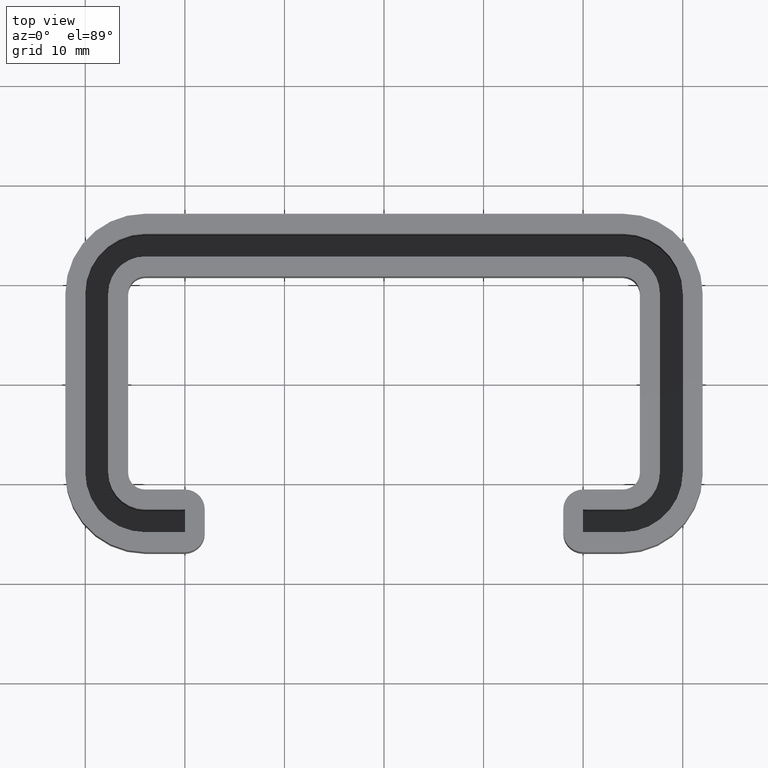
[diagram: clean part render]
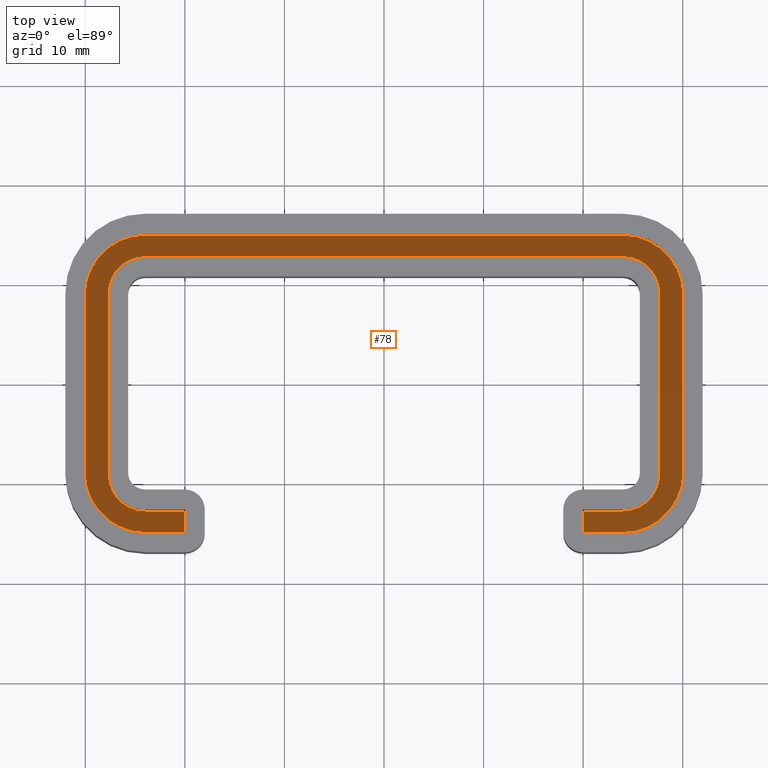
[diagram: same view with one face highlighted and labeled with its STEP entity id]
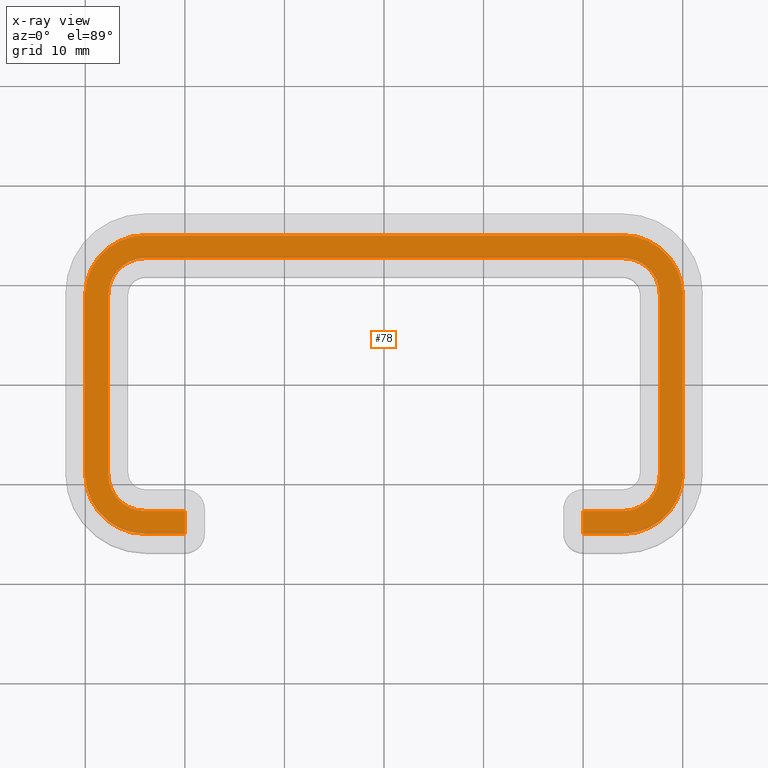
[diagram: x-ray of the same camera — body ghosted, the highlighted face saturated]
A machine part, top view. The second image highlights one B-rep face of the part: STEP entity #78.
The next image is the same camera in x-ray: the body ghosted, the highlighted face saturated — about 4% of this face is hidden behind the body in this view.
In plain terms, the highlighted planar face has unit normal (0, 0, 1).
Its self-contained STEP definition (entity closure, byte-faithful):
#78 = ADVANCED_FACE( '', ( #154 ), #155, .T. );
#154 = FACE_OUTER_BOUND( '', #297, .T. );
#155 = PLANE( '', #298 );
#297 = EDGE_LOOP( '', ( #494, #495, #496, #497, #498, #499, #500, #501, #502, #503, #504, #505, #506, #507, #508, #509, #510, #511, #512, #513 ) );
#298 = AXIS2_PLACEMENT_3D( '', #514, #515, #516 );
#494 = ORIENTED_EDGE( '', *, *, #1048, .F. );
#495 = ORIENTED_EDGE( '', *, *, #1049, .F. );
#496 = ORIENTED_EDGE( '', *, *, #1050, .T. );
#497 = ORIENTED_EDGE( '', *, *, #1051, .F. );
#498 = ORIENTED_EDGE( '', *, *, #1052, .T. );
#499 = ORIENTED_EDGE( '', *, *, #1053, .F. );
#500 = ORIENTED_EDGE( '', *, *, #1046, .T. );
#501 = ORIENTED_EDGE( '', *, *, #1054, .F. );
#502 = ORIENTED_EDGE( '', *, *, #1055, .T. );
#503 = ORIENTED_EDGE( '', *, *, #1056, .F. );
#504 = ORIENTED_EDGE( '', *, *, #1057, .F. );
#505 = ORIENTED_EDGE( '', *, *, #1058, .F. );
#506 = ORIENTED_EDGE( '', *, *, #1059, .T. );
#507 = ORIENTED_EDGE( '', *, *, #1060, .F. );
#508 = ORIENTED_EDGE( '', *, *, #1061, .T. );
#509 = ORIENTED_EDGE( '', *, *, #1062, .F. );
#510 = ORIENTED_EDGE( '', *, *, #1063, .T. );
#511 = ORIENTED_EDGE( '', *, *, #1064, .F. );
#512 = ORIENTED_EDGE( '', *, *, #1065, .T. );
#513 = ORIENTED_EDGE( '', *, *, #1066, .F. );
#514 = CARTESIAN_POINT( '', ( -4.44089209850063E-015, 0.000000000000000, -10.0000000000000 ) );
#515 = DIRECTION( '', ( 0.000000000000000, 0.000000000000000, 1.00000000000000 ) );
#516 = DIRECTION( '', ( 1.00000000000000, 0.000000000000000, 0.000000000000000 ) );
#1046 = EDGE_CURVE( '', #1269, #1267, #1270, .T. );
#1048 = EDGE_CURVE( '', #1272, #1273, #1274, .T. );
#1049 = EDGE_CURVE( '', #1275, #1272, #1276, .T. );
#1050 = EDGE_CURVE( '', #1275, #1277, #1278, .T. );
#1051 = EDGE_CURVE( '', #1279, #1277, #1280, .T. );
#1052 = EDGE_CURVE( '', #1279, #1281, #1282, .T. );
#1053 = EDGE_CURVE( '', #1269, #1281, #1283, .T. );
#1054 = EDGE_CURVE( '', #1284, #1267, #1285, .T. );
#1055 = EDGE_CURVE( '', #1284, #1286, #1287, .T. );
#1056 = EDGE_CURVE( '', #1288, #1286, #1289, .T. );
#1057 = EDGE_CURVE( '', #1290, #1288, #1291, .T. );
#1058 = EDGE_CURVE( '', #1292, #1290, #1293, .T. );
#1059 = EDGE_CURVE( '', #1292, #1294, #1295, .T. );
#1060 = EDGE_CURVE( '', #1296, #1294, #1297, .T. );
#1061 = EDGE_CURVE( '', #1296, #1298, #1299, .T. );
#1062 = EDGE_CURVE( '', #1300, #1298, #1301, .T. );
#1063 = EDGE_CURVE( '', #1300, #1302, #1303, .T. );
#1064 = EDGE_CURVE( '', #1304, #1302, #1305, .T. );
#1065 = EDGE_CURVE( '', #1304, #1306, #1307, .T. );
#1066 = EDGE_CURVE( '', #1273, #1306, #1308, .T. );
#1267 = VERTEX_POINT( '', #1578 );
#1269 = VERTEX_POINT( '', #1581 );
#1270 = CIRCLE( '', #1582, 3.70000000000000 );
#1272 = VERTEX_POINT( '', #1585 );
#1273 = VERTEX_POINT( '', #1586 );
#1274 = LINE( '', #1587, #1588 );
#1275 = VERTEX_POINT( '', #1589 );
#1276 = LINE( '', #1590, #1591 );
#1277 = VERTEX_POINT( '', #1592 );
#1278 = CIRCLE( '', #1593, 3.70000000000000 );
#1279 = VERTEX_POINT( '', #1594 );
#1280 = LINE( '', #1595, #1596 );
#1281 = VERTEX_POINT( '', #1597 );
#1282 = CIRCLE( '', #1598, 3.70000000000000 );
#1283 = LINE( '', #1599, #1600 );
#1284 = VERTEX_POINT( '', #1601 );
#1285 = LINE( '', #1602, #1603 );
#1286 = VERTEX_POINT( '', #1604 );
#1287 = CIRCLE( '', #1605, 3.70000000000000 );
#1288 = VERTEX_POINT( '', #1606 );
#1289 = LINE( '', #1607, #1608 );
#1290 = VERTEX_POINT( '', #1609 );
#1291 = LINE( '', #1610, #1611 );
#1292 = VERTEX_POINT( '', #1612 );
#1293 = LINE( '', #1613, #1614 );
#1294 = VERTEX_POINT( '', #1615 );
#1295 = CIRCLE( '', #1616, 6.00000000000000 );
#1296 = VERTEX_POINT( '', #1617 );
#1297 = LINE( '', #1618, #1619 );
#1298 = VERTEX_POINT( '', #1620 );
#1299 = CIRCLE( '', #1621, 6.00000000000000 );
#1300 = VERTEX_POINT( '', #1622 );
#1301 = LINE( '', #1623, #1624 );
#1302 = VERTEX_POINT( '', #1625 );
#1303 = CIRCLE( '', #1626, 6.00000000000000 );
#1304 = VERTEX_POINT( '', #1627 );
#1305 = LINE( '', #1628, #1629 );
#1306 = VERTEX_POINT( '', #1630 );
#1307 = CIRCLE( '', #1631, 6.00000000000000 );
#1308 = LINE( '', #1632, #1633 );
#1578 = CARTESIAN_POINT( '', ( 27.6999999999983, 9.00000000000080, -10.0000000000000 ) );
#1581 = CARTESIAN_POINT( '', ( 23.9999999999983, 12.7000000000008, -10.0000000000000 ) );
#1582 = AXIS2_PLACEMENT_3D( '', #1934, #1935, #1936 );
#1585 = CARTESIAN_POINT( '', ( -20.0000000000000, -12.6999999999992, -10.0000000000000 ) );
#1586 = CARTESIAN_POINT( '', ( -20.0000000000000, -15.0000000000000, -10.0000000000000 ) );
#1587 = CARTESIAN_POINT( '', ( -20.0000000000000, -10.0000000000000, -10.0000000000000 ) );
#1588 = VECTOR( '', #1938, 1000.00000000000 );
#1589 = CARTESIAN_POINT( '', ( -24.0000000000017, -12.6999999999992, -10.0000000000000 ) );
#1590 = CARTESIAN_POINT( '', ( 13.8499999999992, -12.6999999999992, -10.0000000000000 ) );
#1591 = VECTOR( '', #1939, 1000.00000000000 );
#1592 = CARTESIAN_POINT( '', ( -27.7000000000017, -8.99999999999918, -10.0000000000000 ) );
#1593 = AXIS2_PLACEMENT_3D( '', #1940, #1941, #1942 );
#1594 = CARTESIAN_POINT( '', ( -27.7000000000017, 9.00000000000080, -10.0000000000000 ) );
#1595 = CARTESIAN_POINT( '', ( -27.7000000000017, -6.34999999999959, -10.0000000000000 ) );
#1596 = VECTOR( '', #1943, 1000.00000000000 );
#1597 = CARTESIAN_POINT( '', ( -24.0000000000017, 12.7000000000008, -10.0000000000000 ) );
#1598 = AXIS2_PLACEMENT_3D( '', #1944, #1945, #1946 );
#1599 = CARTESIAN_POINT( '', ( -13.8500000000008, 12.7000000000008, -10.0000000000000 ) );
#1600 = VECTOR( '', #1947, 1000.00000000000 );
#1601 = CARTESIAN_POINT( '', ( 27.6999999999983, -8.99999999999918, -10.0000000000000 ) );
#1602 = CARTESIAN_POINT( '', ( 27.6999999999983, 6.35000000000040, -10.0000000000000 ) );
#1603 = VECTOR( '', #1948, 1000.00000000000 );
#1604 = CARTESIAN_POINT( '', ( 23.9999999999983, -12.6999999999992, -10.0000000000000 ) );
#1605 = AXIS2_PLACEMENT_3D( '', #1949, #1950, #1951 );
#1606 = CARTESIAN_POINT( '', ( 20.0000000000000, -12.6999999999992, -10.0000000000000 ) );
#1607 = CARTESIAN_POINT( '', ( 13.8499999999992, -12.6999999999992, -10.0000000000000 ) );
#1608 = VECTOR( '', #1952, 1000.00000000000 );
#1609 = CARTESIAN_POINT( '', ( 20.0000000000000, -15.0000000000000, -10.0000000000000 ) );
#1610 = CARTESIAN_POINT( '', ( 20.0000000000000, -5.00000000000000, -10.0000000000000 ) );
#1611 = VECTOR( '', #1953, 1000.00000000000 );
#1612 = CARTESIAN_POINT( '', ( 24.0000000000000, -15.0000000000000, -10.0000000000000 ) );
#1613 = CARTESIAN_POINT( '', ( 30.0000000000000, -15.0000000000000, -10.0000000000000 ) );
#1614 = VECTOR( '', #1954, 1000.00000000000 );
#1615 = CARTESIAN_POINT( '', ( 30.0000000000000, -9.00000000000000, -10.0000000000000 ) );
#1616 = AXIS2_PLACEMENT_3D( '', #1955, #1956, #1957 );
#1617 = CARTESIAN_POINT( '', ( 30.0000000000000, 9.00000000000000, -10.0000000000000 ) );
#1618 = CARTESIAN_POINT( '', ( 30.0000000000000, 15.0000000000000, -10.0000000000000 ) );
#1619 = VECTOR( '', #1958, 1000.00000000000 );
#1620 = CARTESIAN_POINT( '', ( 24.0000000000000, 15.0000000000000, -10.0000000000000 ) );
#1621 = AXIS2_PLACEMENT_3D( '', #1959, #1960, #1961 );
#1622 = CARTESIAN_POINT( '', ( -24.0000000000000, 15.0000000000000, -10.0000000000000 ) );
#1623 = CARTESIAN_POINT( '', ( -30.0000000000000, 15.0000000000000, -10.0000000000000 ) );
#1624 = VECTOR( '', #1962, 1000.00000000000 );
#1625 = CARTESIAN_POINT( '', ( -30.0000000000000, 9.00000000000000, -10.0000000000000 ) );
#1626 = AXIS2_PLACEMENT_3D( '', #1963, #1964, #1965 );
#1627 = CARTESIAN_POINT( '', ( -30.0000000000000, -9.00000000000000, -10.0000000000000 ) );
#1628 = CARTESIAN_POINT( '', ( -30.0000000000000, -15.0000000000000, -10.0000000000000 ) );
#1629 = VECTOR( '', #1966, 1000.00000000000 );
#1630 = CARTESIAN_POINT( '', ( -24.0000000000000, -15.0000000000000, -10.0000000000000 ) );
#1631 = AXIS2_PLACEMENT_3D( '', #1967, #1968, #1969 );
#1632 = CARTESIAN_POINT( '', ( 30.0000000000000, -15.0000000000000, -10.0000000000000 ) );
#1633 = VECTOR( '', #1970, 1000.00000000000 );
#1934 = CARTESIAN_POINT( '', ( 23.9999999999983, 9.00000000000080, -10.0000000000000 ) );
#1935 = DIRECTION( '', ( 0.000000000000000, 0.000000000000000, -1.00000000000000 ) );
#1936 = DIRECTION( '', ( 0.707106781186548, 0.707106781186548, 0.000000000000000 ) );
#1938 = DIRECTION( '', ( 0.000000000000000, -1.00000000000000, 0.000000000000000 ) );
#1939 = DIRECTION( '', ( 1.00000000000000, 0.000000000000000, 0.000000000000000 ) );
#1940 = CARTESIAN_POINT( '', ( -24.0000000000017, -8.99999999999918, -10.0000000000000 ) );
#1941 = DIRECTION( '', ( 0.000000000000000, 0.000000000000000, -1.00000000000000 ) );
#1942 = DIRECTION( '', ( -0.707106781186548, -0.707106781186548, 0.000000000000000 ) );
#1943 = DIRECTION( '', ( 0.000000000000000, -1.00000000000000, 0.000000000000000 ) );
#1944 = CARTESIAN_POINT( '', ( -24.0000000000017, 9.00000000000080, -10.0000000000000 ) );
#1945 = DIRECTION( '', ( 0.000000000000000, 0.000000000000000, -1.00000000000000 ) );
#1946 = DIRECTION( '', ( -0.707106781186548, 0.707106781186548, 0.000000000000000 ) );
#1947 = DIRECTION( '', ( -1.00000000000000, 0.000000000000000, 0.000000000000000 ) );
#1948 = DIRECTION( '', ( 0.000000000000000, 1.00000000000000, 0.000000000000000 ) );
#1949 = CARTESIAN_POINT( '', ( 23.9999999999983, -8.99999999999918, -10.0000000000000 ) );
#1950 = DIRECTION( '', ( 0.000000000000000, 0.000000000000000, -1.00000000000000 ) );
#1951 = DIRECTION( '', ( 0.707106781186548, -0.707106781186548, 0.000000000000000 ) );
#1952 = DIRECTION( '', ( 1.00000000000000, 0.000000000000000, 0.000000000000000 ) );
#1953 = DIRECTION( '', ( 0.000000000000000, 1.00000000000000, 0.000000000000000 ) );
#1954 = DIRECTION( '', ( -1.00000000000000, 0.000000000000000, 0.000000000000000 ) );
#1955 = CARTESIAN_POINT( '', ( 24.0000000000000, -9.00000000000000, -10.0000000000000 ) );
#1956 = DIRECTION( '', ( 0.000000000000000, 0.000000000000000, 1.00000000000000 ) );
#1957 = DIRECTION( '', ( 0.707106781186547, -0.707106781186548, 0.000000000000000 ) );
#1958 = DIRECTION( '', ( 1.48029736616688E-016, -1.00000000000000, 0.000000000000000 ) );
#1959 = CARTESIAN_POINT( '', ( 24.0000000000000, 9.00000000000000, -10.0000000000000 ) );
#1960 = DIRECTION( '', ( 0.000000000000000, 0.000000000000000, 1.00000000000000 ) );
#1961 = DIRECTION( '', ( 0.707106781186548, 0.707106781186547, 0.000000000000000 ) );
#1962 = DIRECTION( '', ( 1.00000000000000, -3.70074341541719E-017, 0.000000000000000 ) );
#1963 = CARTESIAN_POINT( '', ( -24.0000000000000, 9.00000000000000, -10.0000000000000 ) );
#1964 = DIRECTION( '', ( 0.000000000000000, 0.000000000000000, 1.00000000000000 ) );
#1965 = DIRECTION( '', ( -0.707106781186548, 0.707106781186547, 0.000000000000000 ) );
#1966 = DIRECTION( '', ( 2.96059473233375E-016, 1.00000000000000, 0.000000000000000 ) );
#1967 = CARTESIAN_POINT( '', ( -24.0000000000000, -9.00000000000000, -10.0000000000000 ) );
#1968 = DIRECTION( '', ( 0.000000000000000, 0.000000000000000, 1.00000000000000 ) );
#1969 = DIRECTION( '', ( -0.707106781186547, -0.707106781186548, 0.000000000000000 ) );
#1970 = DIRECTION( '', ( -1.00000000000000, 0.000000000000000, 0.000000000000000 ) );